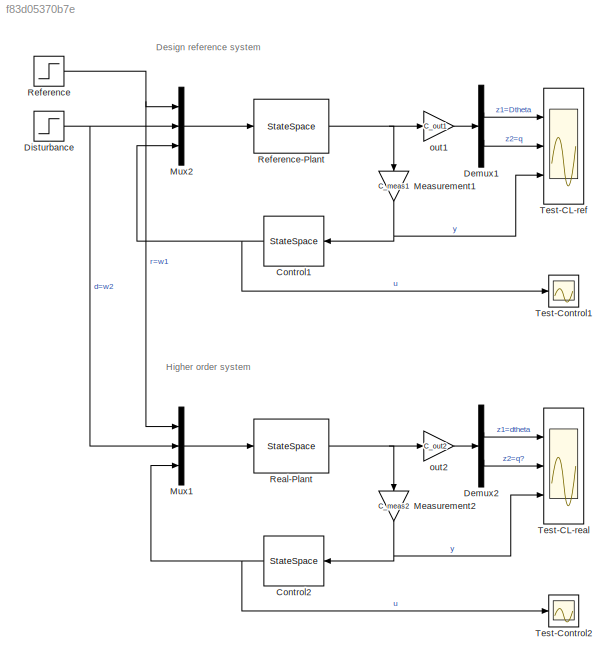
MODEL slx_f83d05370b7e
KIND model
CONFIG AbsTol = auto
CONFIG EnableMultiTasking = on
CONFIG FixedStep = auto
CONFIG MaxStep = auto
CONFIG MinStep = auto
CONFIG RelTol = 1e-3
CONFIG SampleTimeConstraint = Unconstrained
CONFIG Solver = VariableStepAuto
CONFIG SolverName = VariableStepAuto
CONFIG StartTime = 0.0
CONFIG StopTime = 20
BLOCK [StateSpace] Control1
  A = K.A
  B = K.B
  C = K.C
  D = K.D
  Ports = [1, 1]
  X0 = xK0
BLOCK [StateSpace] Control2
  A = K.A
  B = K.B
  C = K.C
  D = K.D
  Ports = [1, 1]
  X0 = xK0
BLOCK [Demux] Demux1
  DisplayOption = bar
  Outputs = 2
  Ports = [1, 2]
BLOCK [Demux] Demux2
  DisplayOption = bar
  Outputs = 2
  Ports = [1, 2]
BLOCK [Step] Disturbance
  After = dist
  SampleTime = 0
  Time = Tdist
BLOCK [Gain] Measurement1
  Gain = C_meas1
  Multiplication = Matrix(K*u)
  OutDataTypeStr = Inherit: Inherit via internal rule
  ParamDataTypeStr = Inherit: Inherit via internal rule
  SaturateOnIntegerOverflow = off
BLOCK [Gain] Measurement2
  Gain = C_meas2
  Multiplication = Matrix(K*u)
  OutDataTypeStr = Inherit: Inherit via internal rule
  ParamDataTypeStr = Inherit: Inherit via internal rule
  SaturateOnIntegerOverflow = off
BLOCK [Mux] Mux1
  DisplayOption = bar
  Inputs = 3
  Ports = [3, 1]
BLOCK [Mux] Mux2
  DisplayOption = bar
  Inputs = 3
  Ports = [3, 1]
BLOCK [StateSpace] Real-Plant
  A = Preal.A
  B = Preal.B
  C = Preal.C
  D = Preal.D
  Ports = [1, 1]
  X0 = xreal0
BLOCK [Step] Reference
  After = ref
  SampleTime = 0
  Time = Tref
BLOCK [StateSpace] Reference-Plant
  A = Pref.A
  B = Pref.B
  C = Pref.C
  D = Pref.D
  Ports = [1, 1]
  X0 = xref0
BLOCK [Scope] Test-CL-real
  NumInputPorts = 3
  Ports = [3]
  ScopeSpecificationString = Simulink.scopes.TimeScopeBlockCfg('CurrentConfiguration', extmgr.ConfigurationSet(extmgr.Configuration('Core','General UI',true),extmgr.Configuration('Core','Source UI',true),extmgr.Configuration('Sources','WiredSimulink',true,'DataLoggingVariableName','output_real','DataLoggingSaveFormat','StructureWithTime','DataLoggingDecimation','1','DataLogging',true),extmgr.Configuration('Visuals','Time Doma...<+2964ch>
BLOCK [Scope] Test-CL-ref
  NumInputPorts = 3
  Ports = [3]
  ScopeSpecificationString = Simulink.scopes.TimeScopeBlockCfg('CurrentConfiguration', extmgr.ConfigurationSet(extmgr.Configuration('Core','General UI',true),extmgr.Configuration('Core','Source UI',true),extmgr.Configuration('Sources','WiredSimulink',true,'DataLoggingVariableName','output_ref','DataLogging',true,'DataLoggingSaveFormat','StructureWithTime'),extmgr.Configuration('Visuals','Time Domain',true,'SerializedDisplays'...<+2782ch>
BLOCK [Scope] Test-Control1
  NumInputPorts = 1
  Ports = [1]
  ScopeSpecificationString = Simulink.scopes.TimeScopeBlockCfg('CurrentConfiguration', extmgr.ConfigurationSet(extmgr.Configuration('Core','General UI',true),extmgr.Configuration('Core','Source UI',true),extmgr.Configuration('Sources','WiredSimulink',true,'DataLoggingVariableName','control_ref','DataLogging',true,'DataLoggingSaveFormat','StructureWithTime'),extmgr.Configuration('Visuals','Time Domain',true,'SerializedDisplays...<+1512ch>
BLOCK [Scope] Test-Control2
  NumInputPorts = 1
  Ports = [1]
  ScopeSpecificationString = Simulink.scopes.TimeScopeBlockCfg('CurrentConfiguration', extmgr.ConfigurationSet(extmgr.Configuration('Core','General UI',true),extmgr.Configuration('Core','Source UI',true),extmgr.Configuration('Sources','WiredSimulink',true,'DataLoggingVariableName','control_real','DataLoggingSaveFormat','StructureWithTime','DataLoggingDecimation','1','DataLogging',true),extmgr.Configuration('Visuals','Time Dom...<+1410ch>
BLOCK [Gain] out1
  Gain = C_out1
  Multiplication = Matrix(K*u)
  OutDataTypeStr = Inherit: Inherit via internal rule
  ParamDataTypeStr = Inherit: Inherit via internal rule
  SaturateOnIntegerOverflow = off
BLOCK [Gain] out2
  Gain = C_out2
  Multiplication = Matrix(K*u)
  OutDataTypeStr = Inherit: Inherit via internal rule
  ParamDataTypeStr = Inherit: Inherit via internal rule
  SaturateOnIntegerOverflow = off
ANNOTATION (root): Design reference system
ANNOTATION (root): Higher order system
NET Control1:1 -> Mux2:3, Test-Control1:1
NET Control2:1 -> Mux1:3, Test-Control2:1
LINE Demux1:1 -> Test-CL-ref:1
LINE Demux1:2 -> Test-CL-ref:2
LINE Demux2:1 -> Test-CL-real:1
LINE Demux2:2 -> Test-CL-real:2
NET Disturbance:1 -> Mux1:2, Mux2:2
NET Measurement1:1 -> Control1:1, Test-CL-ref:3
NET Measurement2:1 -> Control2:1, Test-CL-real:3
LINE Mux1:1 -> Real-Plant:1
LINE Mux2:1 -> Reference-Plant:1
NET Real-Plant:1 -> Measurement2:1, out2:1
NET Reference-Plant:1 -> Measurement1:1, out1:1
NET Reference:1 -> Mux1:1, Mux2:1
LINE out1:1 -> Demux1:1
LINE out2:1 -> Demux2:1
note: NET lines group one-source signal fan-out (src -> all destinations, sorted); 1:1 wires keep LINE
